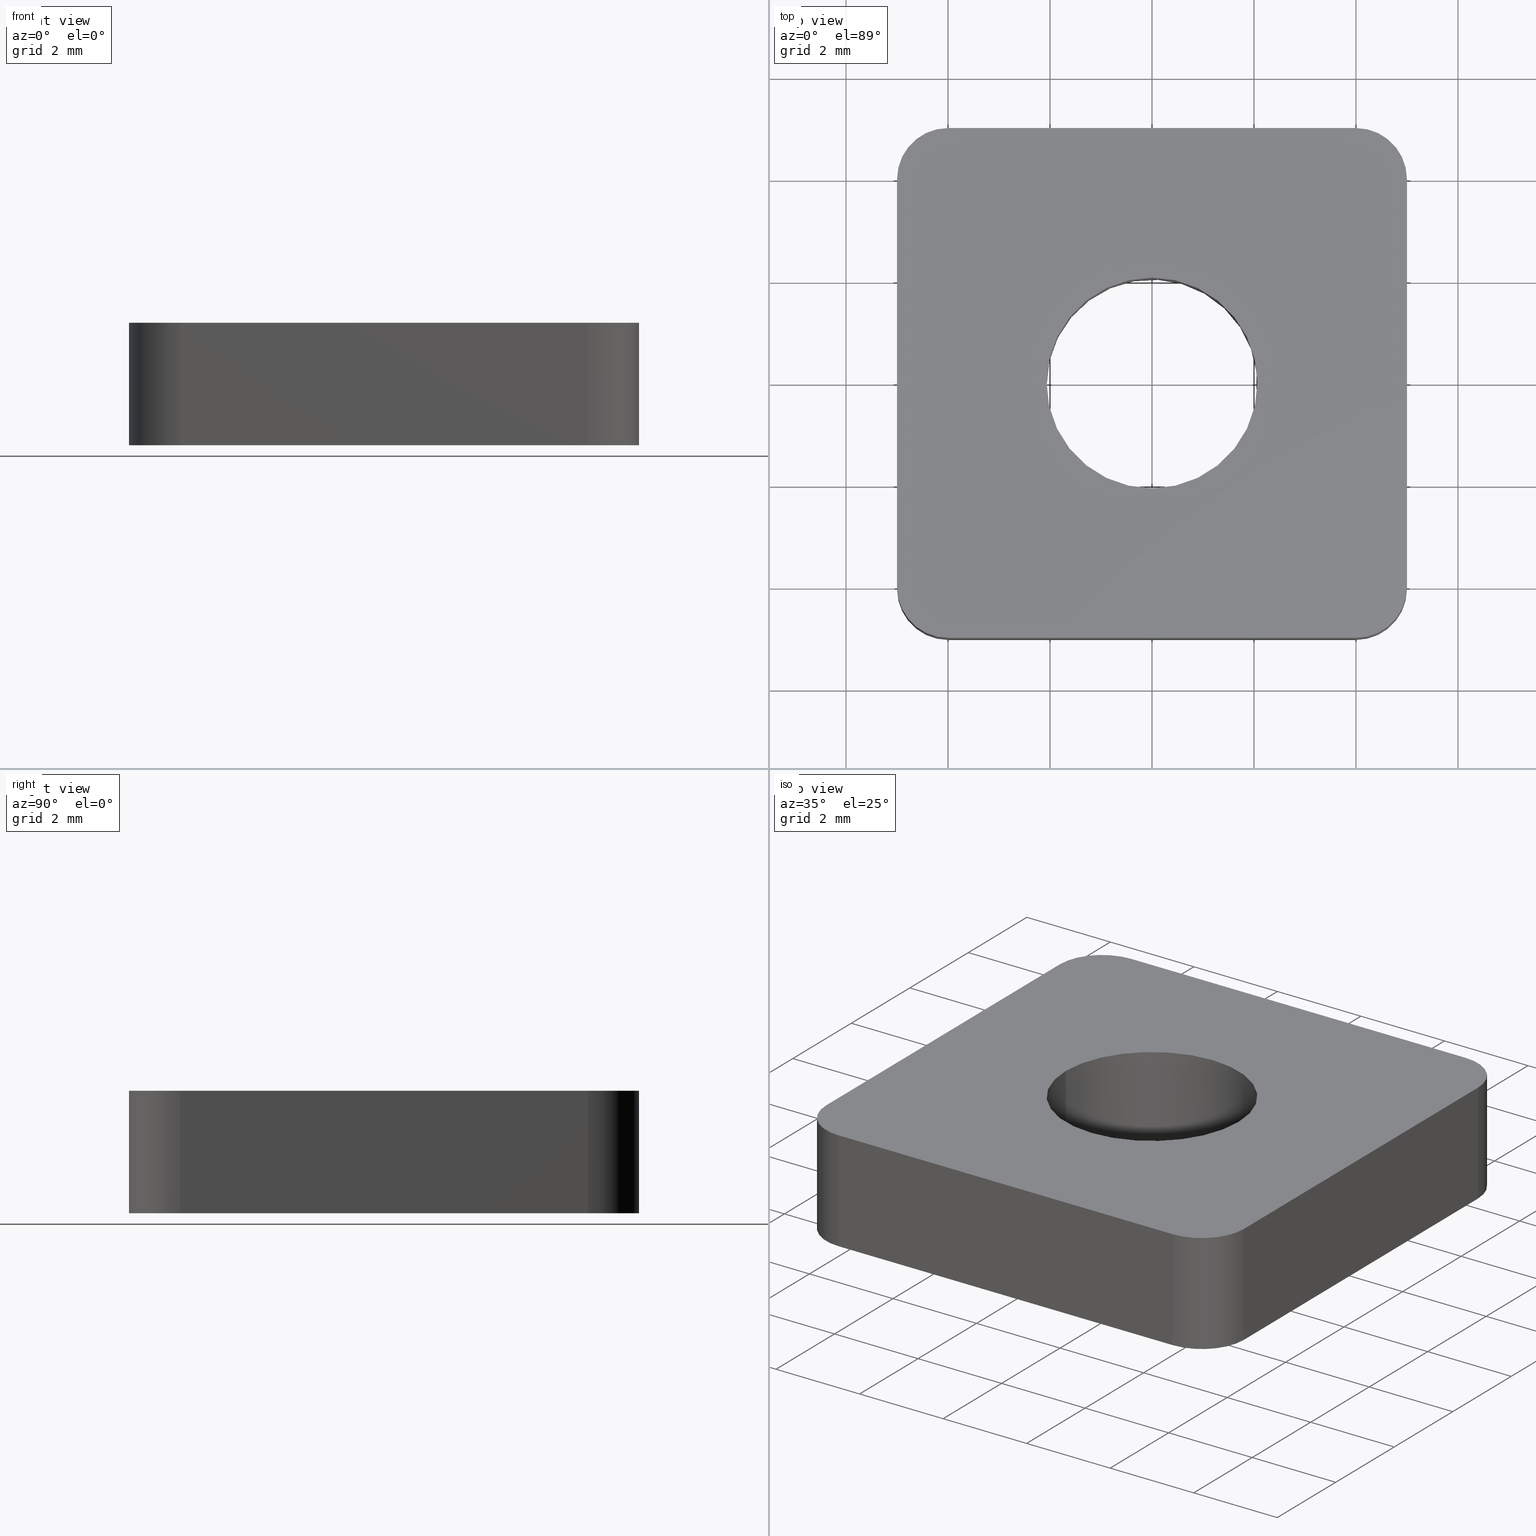
[diagram: canonical four-view strip — front | top / right | iso, engineering-drawing reading convention]
A machine part, canonical four-view strip (front | top / right | iso — engineering-drawing reading convention). The complete STEP part file that produces these views, byte-faithful:
ISO-10303-21;
HEADER;
/* Generated by software containing ST-Developer
 * from STEP Tools, Inc. (www.steptools.com) 
 */

FILE_DESCRIPTION(
/* description */ ('CURSORE ZINC. 10x10 M5'),
/* implementation_level */ '2;1');

FILE_NAME(
/* name */ 
'Q:\\Catalogo\\2_Accessori Dierre\\Per Download Web e catalogo cartace
o\\CATALOGO ELEMENTI ASSEMBLAGGIO\\PAGINA 6\\DDDCU0000024.stp',
/* time_stamp */ '2019-02-26T09:08:27+01:00',
/* author */ ('fzagni'),
/* organization */ (''),
/* preprocessor_version */ 'ST-DEVELOPER v17.2',
/* originating_system */ 'Autodesk Inventor 2019',
/* authorisation */ '');

FILE_SCHEMA (('AUTOMOTIVE_DESIGN { 1 0 10303 214 3 1 1 }'));
ENDSEC;

DATA;
#10=MECHANICAL_DESIGN_GEOMETRIC_PRESENTATION_REPRESENTATION('',(#13),#378);
#11=SHAPE_REPRESENTATION_RELATIONSHIP('SRR','None',#385,#12);
#12=ADVANCED_BREP_SHAPE_REPRESENTATION('',(#14),#377);
#13=STYLED_ITEM('',(#394),#14);
#14=MANIFOLD_SOLID_BREP('None',#211);
#15=FACE_BOUND('',#38,.T.);
#16=FACE_BOUND('',#46,.T.);
#17=PLANE('',#238);
#18=PLANE('',#239);
#19=PLANE('',#245);
#20=PLANE('',#248);
#21=PLANE('',#251);
#22=PLANE('',#252);
#23=FACE_OUTER_BOUND('',#34,.T.);
#24=FACE_OUTER_BOUND('',#35,.T.);
#25=FACE_OUTER_BOUND('',#36,.T.);
#26=FACE_OUTER_BOUND('',#37,.T.);
#27=FACE_OUTER_BOUND('',#39,.T.);
#28=FACE_OUTER_BOUND('',#40,.T.);
#29=FACE_OUTER_BOUND('',#41,.T.);
#30=FACE_OUTER_BOUND('',#42,.T.);
#31=FACE_OUTER_BOUND('',#43,.T.);
#32=FACE_OUTER_BOUND('',#44,.T.);
#33=FACE_OUTER_BOUND('',#45,.T.);
#34=EDGE_LOOP('',(#139,#140,#141,#142,#143));
#35=EDGE_LOOP('',(#144,#145,#146,#147));
#36=EDGE_LOOP('',(#148,#149,#150,#151));
#37=EDGE_LOOP('',(#152,#153,#154,#155,#156,#157,#158,#159));
#38=EDGE_LOOP('',(#160));
#39=EDGE_LOOP('',(#161,#162,#163,#164));
#40=EDGE_LOOP('',(#165,#166,#167,#168));
#41=EDGE_LOOP('',(#169,#170,#171,#172));
#42=EDGE_LOOP('',(#173,#174,#175,#176));
#43=EDGE_LOOP('',(#177,#178,#179,#180));
#44=EDGE_LOOP('',(#181,#182,#183,#184));
#45=EDGE_LOOP('',(#185,#186,#187,#188,#189,#190,#191,#192));
#46=EDGE_LOOP('',(#193,#194));
#47=LINE('',#323,#64);
#48=LINE('',#330,#65);
#49=LINE('',#333,#66);
#50=LINE('',#336,#67);
#51=LINE('',#338,#68);
#52=LINE('',#339,#69);
#53=LINE('',#342,#70);
#54=LINE('',#346,#71);
#55=LINE('',#350,#72);
#56=LINE('',#356,#73);
#57=LINE('',#357,#74);
#58=LINE('',#360,#75);
#59=LINE('',#361,#76);
#60=LINE('',#364,#77);
#61=LINE('',#368,#78);
#62=LINE('',#369,#79);
#63=LINE('',#373,#80);
#64=VECTOR('',#261,2.067);
#65=VECTOR('',#268,10.);
#66=VECTOR('',#271,10.);
#67=VECTOR('',#274,8.);
#68=VECTOR('',#275,2.4);
#69=VECTOR('',#276,8.);
#70=VECTOR('',#279,7.99999999999989);
#71=VECTOR('',#282,8.);
#72=VECTOR('',#285,7.99999999999989);
#73=VECTOR('',#292,10.);
#74=VECTOR('',#293,10.);
#75=VECTOR('',#296,8.);
#76=VECTOR('',#297,2.4);
#77=VECTOR('',#300,2.4);
#78=VECTOR('',#305,2.4);
#79=VECTOR('',#306,7.99999999999989);
#80=VECTOR('',#313,7.99999999999989);
#81=CIRCLE('',#232,2.067);
#82=CIRCLE('',#233,2.067);
#83=CIRCLE('',#234,2.067);
#84=CIRCLE('',#236,1.);
#85=CIRCLE('',#237,1.);
#86=CIRCLE('',#240,1.);
#87=CIRCLE('',#241,1.);
#88=CIRCLE('',#242,1.);
#89=CIRCLE('',#244,1.);
#90=CIRCLE('',#247,1.);
#91=CIRCLE('',#250,1.);
#92=VERTEX_POINT('',#318);
#93=VERTEX_POINT('',#319);
#94=VERTEX_POINT('',#322);
#95=VERTEX_POINT('',#326);
#96=VERTEX_POINT('',#327);
#97=VERTEX_POINT('',#329);
#98=VERTEX_POINT('',#331);
#99=VERTEX_POINT('',#335);
#100=VERTEX_POINT('',#337);
#101=VERTEX_POINT('',#341);
#102=VERTEX_POINT('',#343);
#103=VERTEX_POINT('',#345);
#104=VERTEX_POINT('',#347);
#105=VERTEX_POINT('',#349);
#106=VERTEX_POINT('',#353);
#107=VERTEX_POINT('',#354);
#108=VERTEX_POINT('',#359);
#109=VERTEX_POINT('',#363);
#110=VERTEX_POINT('',#367);
#111=EDGE_CURVE('',#92,#93,#81,.T.);
#112=EDGE_CURVE('',#93,#92,#82,.T.);
#113=EDGE_CURVE('',#93,#94,#47,.T.);
#114=EDGE_CURVE('',#94,#94,#83,.T.);
#115=EDGE_CURVE('',#95,#96,#84,.T.);
#116=EDGE_CURVE('',#96,#97,#48,.T.);
#117=EDGE_CURVE('',#97,#98,#85,.T.);
#118=EDGE_CURVE('',#98,#95,#49,.T.);
#119=EDGE_CURVE('',#98,#99,#50,.T.);
#120=EDGE_CURVE('',#100,#99,#51,.T.);
#121=EDGE_CURVE('',#95,#100,#52,.T.);
#122=EDGE_CURVE('',#101,#97,#53,.T.);
#123=EDGE_CURVE('',#102,#101,#86,.T.);
#124=EDGE_CURVE('',#103,#102,#54,.T.);
#125=EDGE_CURVE('',#104,#103,#87,.T.);
#126=EDGE_CURVE('',#105,#104,#55,.T.);
#127=EDGE_CURVE('',#99,#105,#88,.T.);
#128=EDGE_CURVE('',#106,#107,#89,.T.);
#129=EDGE_CURVE('',#107,#102,#56,.T.);
#130=EDGE_CURVE('',#101,#106,#57,.T.);
#131=EDGE_CURVE('',#108,#107,#58,.T.);
#132=EDGE_CURVE('',#108,#103,#59,.T.);
#133=EDGE_CURVE('',#109,#104,#60,.T.);
#134=EDGE_CURVE('',#109,#108,#90,.T.);
#135=EDGE_CURVE('',#110,#105,#61,.T.);
#136=EDGE_CURVE('',#110,#109,#62,.T.);
#137=EDGE_CURVE('',#100,#110,#91,.T.);
#138=EDGE_CURVE('',#106,#96,#63,.T.);
#139=ORIENTED_EDGE('',*,*,#111,.F.);
#140=ORIENTED_EDGE('',*,*,#112,.F.);
#141=ORIENTED_EDGE('',*,*,#113,.T.);
#142=ORIENTED_EDGE('',*,*,#114,.F.);
#143=ORIENTED_EDGE('',*,*,#113,.F.);
#144=ORIENTED_EDGE('',*,*,#115,.T.);
#145=ORIENTED_EDGE('',*,*,#116,.T.);
#146=ORIENTED_EDGE('',*,*,#117,.T.);
#147=ORIENTED_EDGE('',*,*,#118,.T.);
#148=ORIENTED_EDGE('',*,*,#118,.F.);
#149=ORIENTED_EDGE('',*,*,#119,.T.);
#150=ORIENTED_EDGE('',*,*,#120,.F.);
#151=ORIENTED_EDGE('',*,*,#121,.F.);
#152=ORIENTED_EDGE('',*,*,#117,.F.);
#153=ORIENTED_EDGE('',*,*,#122,.F.);
#154=ORIENTED_EDGE('',*,*,#123,.F.);
#155=ORIENTED_EDGE('',*,*,#124,.F.);
#156=ORIENTED_EDGE('',*,*,#125,.F.);
#157=ORIENTED_EDGE('',*,*,#126,.F.);
#158=ORIENTED_EDGE('',*,*,#127,.F.);
#159=ORIENTED_EDGE('',*,*,#119,.F.);
#160=ORIENTED_EDGE('',*,*,#114,.T.);
#161=ORIENTED_EDGE('',*,*,#128,.T.);
#162=ORIENTED_EDGE('',*,*,#129,.T.);
#163=ORIENTED_EDGE('',*,*,#123,.T.);
#164=ORIENTED_EDGE('',*,*,#130,.T.);
#165=ORIENTED_EDGE('',*,*,#129,.F.);
#166=ORIENTED_EDGE('',*,*,#131,.F.);
#167=ORIENTED_EDGE('',*,*,#132,.T.);
#168=ORIENTED_EDGE('',*,*,#124,.T.);
#169=ORIENTED_EDGE('',*,*,#133,.T.);
#170=ORIENTED_EDGE('',*,*,#125,.T.);
#171=ORIENTED_EDGE('',*,*,#132,.F.);
#172=ORIENTED_EDGE('',*,*,#134,.F.);
#173=ORIENTED_EDGE('',*,*,#135,.T.);
#174=ORIENTED_EDGE('',*,*,#126,.T.);
#175=ORIENTED_EDGE('',*,*,#133,.F.);
#176=ORIENTED_EDGE('',*,*,#136,.F.);
#177=ORIENTED_EDGE('',*,*,#120,.T.);
#178=ORIENTED_EDGE('',*,*,#127,.T.);
#179=ORIENTED_EDGE('',*,*,#135,.F.);
#180=ORIENTED_EDGE('',*,*,#137,.F.);
#181=ORIENTED_EDGE('',*,*,#116,.F.);
#182=ORIENTED_EDGE('',*,*,#138,.F.);
#183=ORIENTED_EDGE('',*,*,#130,.F.);
#184=ORIENTED_EDGE('',*,*,#122,.T.);
#185=ORIENTED_EDGE('',*,*,#115,.F.);
#186=ORIENTED_EDGE('',*,*,#121,.T.);
#187=ORIENTED_EDGE('',*,*,#137,.T.);
#188=ORIENTED_EDGE('',*,*,#136,.T.);
#189=ORIENTED_EDGE('',*,*,#134,.T.);
#190=ORIENTED_EDGE('',*,*,#131,.T.);
#191=ORIENTED_EDGE('',*,*,#128,.F.);
#192=ORIENTED_EDGE('',*,*,#138,.T.);
#193=ORIENTED_EDGE('',*,*,#111,.T.);
#194=ORIENTED_EDGE('',*,*,#112,.T.);
#195=CYLINDRICAL_SURFACE('',#231,2.067);
#196=CYLINDRICAL_SURFACE('',#235,1.);
#197=CYLINDRICAL_SURFACE('',#243,1.);
#198=CYLINDRICAL_SURFACE('',#246,1.);
#199=CYLINDRICAL_SURFACE('',#249,1.);
#200=ADVANCED_FACE('',(#23),#195,.F.);
#201=ADVANCED_FACE('',(#24),#196,.T.);
#202=ADVANCED_FACE('',(#25),#17,.F.);
#203=ADVANCED_FACE('',(#26,#15),#18,.F.);
#204=ADVANCED_FACE('',(#27),#197,.T.);
#205=ADVANCED_FACE('',(#28),#19,.F.);
#206=ADVANCED_FACE('',(#29),#198,.T.);
#207=ADVANCED_FACE('',(#30),#20,.F.);
#208=ADVANCED_FACE('',(#31),#199,.T.);
#209=ADVANCED_FACE('',(#32),#21,.F.);
#210=ADVANCED_FACE('',(#33,#16),#22,.T.);
#211=CLOSED_SHELL('',(#200,#201,#202,#203,#204,#205,#206,#207,#208,#209,
#210));
#212=DERIVED_UNIT_ELEMENT(#214,1.);
#213=DERIVED_UNIT_ELEMENT(#380,3.);
#214=(
MASS_UNIT()
NAMED_UNIT(*)
SI_UNIT($,.GRAM.)
);
#215=DERIVED_UNIT((#212,#213));
#216=MEASURE_REPRESENTATION_ITEM('density measure',
POSITIVE_RATIO_MEASURE(7.85),#215);
#217=PROPERTY_DEFINITION_REPRESENTATION(#222,#219);
#218=PROPERTY_DEFINITION_REPRESENTATION(#223,#220);
#219=REPRESENTATION('material name',(#221),#377);
#220=REPRESENTATION('density',(#216),#377);
#221=DESCRIPTIVE_REPRESENTATION_ITEM('Acciaio','Acciaio');
#222=PROPERTY_DEFINITION('material property','material name',#387);
#223=PROPERTY_DEFINITION('material property','density of part',#387);
#224=DATE_TIME_ROLE('creation_date');
#225=APPLIED_DATE_AND_TIME_ASSIGNMENT(#226,#224,(#387));
#226=DATE_AND_TIME(#227,#228);
#227=CALENDAR_DATE(2012,13,1);
#228=LOCAL_TIME(10,20,29.,#229);
#229=COORDINATED_UNIVERSAL_TIME_OFFSET(0,0,.BEHIND.);
#230=AXIS2_PLACEMENT_3D('placement',#316,#253,#254);
#231=AXIS2_PLACEMENT_3D('',#317,#255,#256);
#232=AXIS2_PLACEMENT_3D('',#320,#257,#258);
#233=AXIS2_PLACEMENT_3D('',#321,#259,#260);
#234=AXIS2_PLACEMENT_3D('',#324,#262,#263);
#235=AXIS2_PLACEMENT_3D('',#325,#264,#265);
#236=AXIS2_PLACEMENT_3D('',#328,#266,#267);
#237=AXIS2_PLACEMENT_3D('',#332,#269,#270);
#238=AXIS2_PLACEMENT_3D('',#334,#272,#273);
#239=AXIS2_PLACEMENT_3D('',#340,#277,#278);
#240=AXIS2_PLACEMENT_3D('',#344,#280,#281);
#241=AXIS2_PLACEMENT_3D('',#348,#283,#284);
#242=AXIS2_PLACEMENT_3D('',#351,#286,#287);
#243=AXIS2_PLACEMENT_3D('',#352,#288,#289);
#244=AXIS2_PLACEMENT_3D('',#355,#290,#291);
#245=AXIS2_PLACEMENT_3D('',#358,#294,#295);
#246=AXIS2_PLACEMENT_3D('',#362,#298,#299);
#247=AXIS2_PLACEMENT_3D('',#365,#301,#302);
#248=AXIS2_PLACEMENT_3D('',#366,#303,#304);
#249=AXIS2_PLACEMENT_3D('',#370,#307,#308);
#250=AXIS2_PLACEMENT_3D('',#371,#309,#310);
#251=AXIS2_PLACEMENT_3D('',#372,#311,#312);
#252=AXIS2_PLACEMENT_3D('',#374,#314,#315);
#253=DIRECTION('axis',(0.,0.,1.));
#254=DIRECTION('refdir',(1.,0.,0.));
#255=DIRECTION('center_axis',(0.,0.,1.));
#256=DIRECTION('ref_axis',(1.,0.,0.));
#257=DIRECTION('center_axis',(0.,0.,-1.));
#258=DIRECTION('ref_axis',(1.,0.,0.));
#259=DIRECTION('center_axis',(0.,0.,-1.));
#260=DIRECTION('ref_axis',(1.,0.,0.));
#261=DIRECTION('',(0.,0.,-1.));
#262=DIRECTION('center_axis',(0.,0.,1.));
#263=DIRECTION('ref_axis',(1.,0.,0.));
#264=DIRECTION('center_axis',(0.,0.,1.));
#265=DIRECTION('ref_axis',(-0.707106781186547,-0.707106781186548,0.));
#266=DIRECTION('center_axis',(0.,0.,-1.));
#267=DIRECTION('ref_axis',(-0.707106781186547,-0.707106781186548,0.));
#268=DIRECTION('',(0.,0.,-1.));
#269=DIRECTION('center_axis',(0.,0.,1.));
#270=DIRECTION('ref_axis',(-0.707106781186547,-0.707106781186548,0.));
#271=DIRECTION('',(0.,0.,1.));
#272=DIRECTION('center_axis',(0.,1.,0.));
#273=DIRECTION('ref_axis',(0.,0.,1.));
#274=DIRECTION('',(1.,0.,0.));
#275=DIRECTION('',(0.,0.,-1.));
#276=DIRECTION('',(1.,0.,0.));
#277=DIRECTION('center_axis',(0.,0.,1.));
#278=DIRECTION('ref_axis',(1.,0.,0.));
#279=DIRECTION('',(0.,-1.,0.));
#280=DIRECTION('center_axis',(0.,0.,1.));
#281=DIRECTION('ref_axis',(-0.707106781186548,0.707106781186547,0.));
#282=DIRECTION('',(-1.,0.,0.));
#283=DIRECTION('center_axis',(0.,0.,1.));
#284=DIRECTION('ref_axis',(1.,0.,0.));
#285=DIRECTION('',(0.,1.,0.));
#286=DIRECTION('center_axis',(0.,0.,1.));
#287=DIRECTION('ref_axis',(1.,0.,0.));
#288=DIRECTION('center_axis',(0.,0.,1.));
#289=DIRECTION('ref_axis',(-0.707106781186548,0.707106781186547,0.));
#290=DIRECTION('center_axis',(0.,0.,-1.));
#291=DIRECTION('ref_axis',(-0.707106781186548,0.707106781186547,0.));
#292=DIRECTION('',(0.,0.,-1.));
#293=DIRECTION('',(0.,0.,1.));
#294=DIRECTION('center_axis',(0.,-1.,0.));
#295=DIRECTION('ref_axis',(0.,0.,-1.));
#296=DIRECTION('',(-1.,0.,0.));
#297=DIRECTION('',(0.,0.,-1.));
#298=DIRECTION('center_axis',(0.,0.,1.));
#299=DIRECTION('ref_axis',(1.,0.,0.));
#300=DIRECTION('',(0.,0.,-1.));
#301=DIRECTION('center_axis',(0.,0.,1.));
#302=DIRECTION('ref_axis',(1.,0.,0.));
#303=DIRECTION('center_axis',(-1.,0.,0.));
#304=DIRECTION('ref_axis',(0.,0.,1.));
#305=DIRECTION('',(0.,0.,-1.));
#306=DIRECTION('',(0.,1.,0.));
#307=DIRECTION('center_axis',(0.,0.,1.));
#308=DIRECTION('ref_axis',(0.,-1.,0.));
#309=DIRECTION('center_axis',(0.,0.,1.));
#310=DIRECTION('ref_axis',(1.,0.,0.));
#311=DIRECTION('center_axis',(1.,0.,0.));
#312=DIRECTION('ref_axis',(0.,0.,-1.));
#313=DIRECTION('',(0.,-1.,0.));
#314=DIRECTION('center_axis',(0.,0.,1.));
#315=DIRECTION('ref_axis',(1.,0.,0.));
#316=CARTESIAN_POINT('',(0.,0.,0.));
#317=CARTESIAN_POINT('Origin',(-3.33066907387547E-15,0.,-14.3443368616329));
#318=CARTESIAN_POINT('',(2.067,0.,0.));
#319=CARTESIAN_POINT('',(-2.067,-2.53134493383758E-16,0.));
#320=CARTESIAN_POINT('Origin',(-3.33066907387547E-15,0.,0.));
#321=CARTESIAN_POINT('Origin',(-3.33066907387547E-15,0.,0.));
#322=CARTESIAN_POINT('',(-2.067,-2.53134493383758E-16,-2.4));
#323=CARTESIAN_POINT('',(-2.067,-2.53134493383758E-16,-14.3443368616329));
#324=CARTESIAN_POINT('Origin',(-3.33066907387547E-15,0.,-2.4));
#325=CARTESIAN_POINT('Origin',(-4.,-4.,0.));
#326=CARTESIAN_POINT('',(-4.,-5.,0.));
#327=CARTESIAN_POINT('',(-5.,-4.,0.));
#328=CARTESIAN_POINT('Origin',(-4.,-4.,0.));
#329=CARTESIAN_POINT('',(-5.,-4.,-2.4));
#330=CARTESIAN_POINT('',(-5.,-4.,0.));
#331=CARTESIAN_POINT('',(-4.,-5.,-2.4));
#332=CARTESIAN_POINT('Origin',(-4.,-4.,-2.4));
#333=CARTESIAN_POINT('',(-4.,-5.,0.));
#334=CARTESIAN_POINT('Origin',(-4.,-5.,0.));
#335=CARTESIAN_POINT('',(4.,-4.99999999999988,-2.4));
#336=CARTESIAN_POINT('',(-4.,-5.,-2.4));
#337=CARTESIAN_POINT('',(4.,-4.99999999999988,0.));
#338=CARTESIAN_POINT('',(4.,-4.99999999999988,0.));
#339=CARTESIAN_POINT('',(-4.,-5.,0.));
#340=CARTESIAN_POINT('Origin',(-6.00012000264004,6.49987999738437,-2.4));
#341=CARTESIAN_POINT('',(-5.,4.,-2.4));
#342=CARTESIAN_POINT('',(-5.,16.4999999999999,-2.4));
#343=CARTESIAN_POINT('',(-4.,5.,-2.4));
#344=CARTESIAN_POINT('Origin',(-4.,4.,-2.4));
#345=CARTESIAN_POINT('',(4.,5.,-2.4));
#346=CARTESIAN_POINT('',(4.,5.,-2.4));
#347=CARTESIAN_POINT('',(5.,4.,-2.4));
#348=CARTESIAN_POINT('Origin',(4.,4.,-2.4));
#349=CARTESIAN_POINT('',(5.,-3.99999999999989,-2.4));
#350=CARTESIAN_POINT('',(5.,8.50000000000011,-2.4));
#351=CARTESIAN_POINT('Origin',(4.,-3.99999999999989,-2.4));
#352=CARTESIAN_POINT('Origin',(-4.,4.,0.));
#353=CARTESIAN_POINT('',(-5.,4.,0.));
#354=CARTESIAN_POINT('',(-4.,5.,0.));
#355=CARTESIAN_POINT('Origin',(-4.,4.,0.));
#356=CARTESIAN_POINT('',(-4.,5.,0.));
#357=CARTESIAN_POINT('',(-5.,4.,0.));
#358=CARTESIAN_POINT('Origin',(4.,5.,0.));
#359=CARTESIAN_POINT('',(4.,5.,0.));
#360=CARTESIAN_POINT('',(4.,5.,0.));
#361=CARTESIAN_POINT('',(4.,5.,0.));
#362=CARTESIAN_POINT('Origin',(4.,4.,0.));
#363=CARTESIAN_POINT('',(5.,4.,0.));
#364=CARTESIAN_POINT('',(5.,4.,0.));
#365=CARTESIAN_POINT('Origin',(4.,4.,0.));
#366=CARTESIAN_POINT('Origin',(5.,-3.99999999999989,0.));
#367=CARTESIAN_POINT('',(5.,-3.99999999999989,0.));
#368=CARTESIAN_POINT('',(5.,-3.99999999999989,0.));
#369=CARTESIAN_POINT('',(5.,8.50000000000011,0.));
#370=CARTESIAN_POINT('Origin',(4.,-3.99999999999989,0.));
#371=CARTESIAN_POINT('Origin',(4.,-3.99999999999989,0.));
#372=CARTESIAN_POINT('Origin',(-5.,16.4999999999999,0.));
#373=CARTESIAN_POINT('',(-5.,16.4999999999999,0.));
#374=CARTESIAN_POINT('Origin',(-6.00012000264004,6.49987999738437,0.));
#375=UNCERTAINTY_MEASURE_WITH_UNIT(LENGTH_MEASURE(0.01),#379,
'DISTANCE_ACCURACY_VALUE',
'Maximum model space distance between geometric entities at asserted c
onnectivities');
#376=UNCERTAINTY_MEASURE_WITH_UNIT(LENGTH_MEASURE(0.01),#379,
'DISTANCE_ACCURACY_VALUE',
'Maximum model space distance between geometric entities at asserted c
onnectivities');
#377=(
GEOMETRIC_REPRESENTATION_CONTEXT(3)
GLOBAL_UNCERTAINTY_ASSIGNED_CONTEXT((#375))
GLOBAL_UNIT_ASSIGNED_CONTEXT((#379,#381,#382))
REPRESENTATION_CONTEXT('','3D')
);
#378=(
GEOMETRIC_REPRESENTATION_CONTEXT(3)
GLOBAL_UNCERTAINTY_ASSIGNED_CONTEXT((#376))
GLOBAL_UNIT_ASSIGNED_CONTEXT((#379,#381,#382))
REPRESENTATION_CONTEXT('','3D')
);
#379=(
LENGTH_UNIT()
NAMED_UNIT(*)
SI_UNIT(.MILLI.,.METRE.)
);
#380=(
LENGTH_UNIT()
NAMED_UNIT(*)
SI_UNIT(.CENTI.,.METRE.)
);
#381=(
NAMED_UNIT(*)
PLANE_ANGLE_UNIT()
SI_UNIT($,.RADIAN.)
);
#382=(
NAMED_UNIT(*)
SI_UNIT($,.STERADIAN.)
SOLID_ANGLE_UNIT()
);
#383=SHAPE_DEFINITION_REPRESENTATION(#384,#385);
#384=PRODUCT_DEFINITION_SHAPE('',$,#387);
#385=SHAPE_REPRESENTATION('',(#230),#377);
#386=PRODUCT_DEFINITION_CONTEXT('part definition',#391,'design');
#387=PRODUCT_DEFINITION('440000002337','440000002337',#388,#386);
#388=PRODUCT_DEFINITION_FORMATION('E',$,#393);
#389=PRODUCT_RELATED_PRODUCT_CATEGORY('440000002337','440000002337',(#393));
#390=APPLICATION_PROTOCOL_DEFINITION('international standard',
'automotive_design',2009,#391);
#391=APPLICATION_CONTEXT(
'Core Data for Automotive Mechanical Design Process');
#392=PRODUCT_CONTEXT('part definition',#391,'mechanical');
#393=PRODUCT('440000002337','440000002337','CURSORE ZINC. 10x10 M5',(#392));
#394=PRESENTATION_STYLE_ASSIGNMENT((#395));
#395=SURFACE_STYLE_USAGE(.BOTH.,#398);
#396=SURFACE_STYLE_RENDERING_WITH_PROPERTIES($,#402,(#397));
#397=SURFACE_STYLE_TRANSPARENT(1.);
#398=SURFACE_SIDE_STYLE('',(#399,#396));
#399=SURFACE_STYLE_FILL_AREA(#400);
#400=FILL_AREA_STYLE('',(#401));
#401=FILL_AREA_STYLE_COLOUR('',#402);
#402=COLOUR_RGB('',0.745098039215686,0.737254901960784,0.729411764705882);
ENDSEC;
END-ISO-10303-21;
